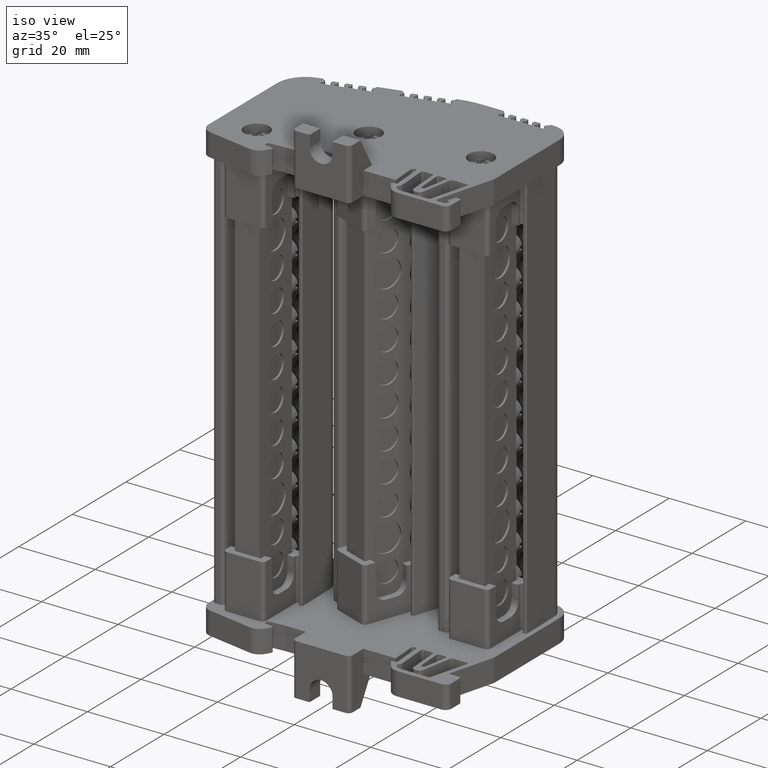
[diagram: clean part render]
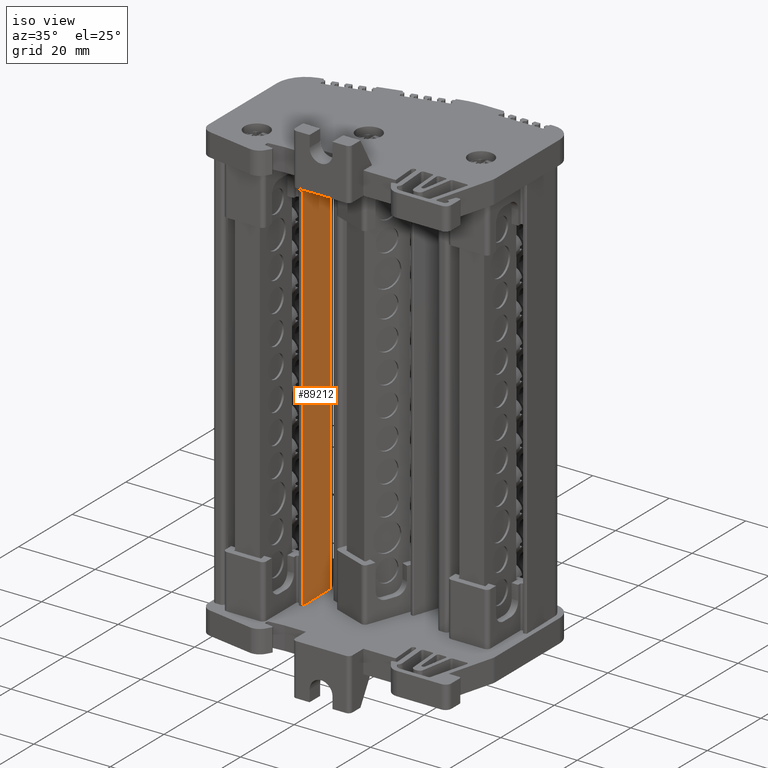
[diagram: same view with one face highlighted and labeled with its STEP entity id]
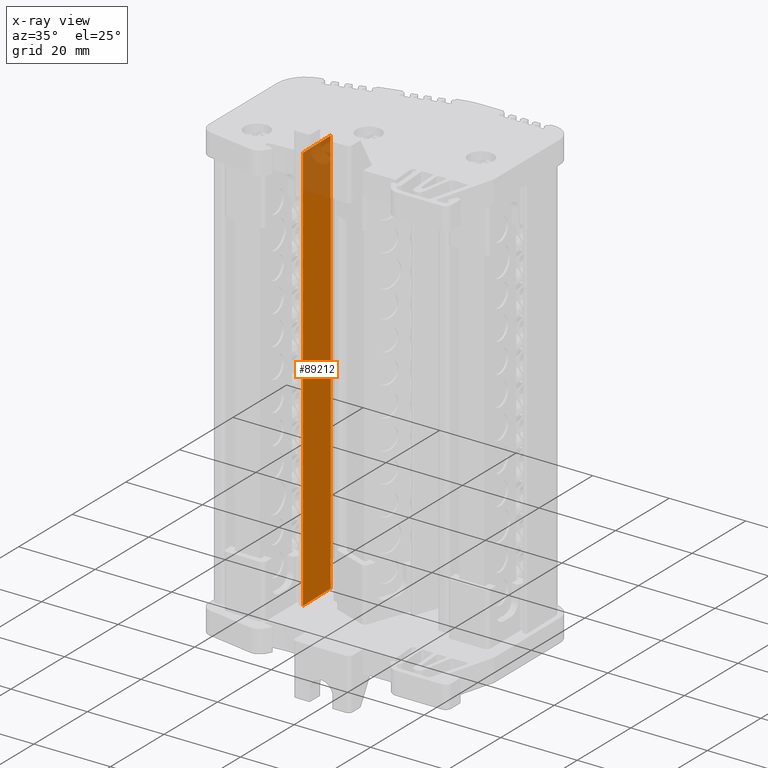
[diagram: x-ray of the same camera — body ghosted, the highlighted face saturated]
A machine part, iso view. The second image highlights one B-rep face of the part: STEP entity #89212.
The next image is the same camera in x-ray: the body ghosted, the highlighted face saturated — about 11% of this face is hidden behind the body in this view.
In plain terms, the highlighted planar face has unit normal (-0.9998, -0.0175, 0).
Its self-contained STEP definition (entity closure, byte-faithful):
#1695 = ORIENTED_EDGE ( 'NONE', *, *, #11537, .T. ) ;
#1708 = ORIENTED_EDGE ( 'NONE', *, *, #4915, .F. ) ;
#1724 = ORIENTED_EDGE ( 'NONE', *, *, #11531, .F. ) ;
#1727 = ORIENTED_EDGE ( 'NONE', *, *, #5017, .F. ) ;
#4915 = EDGE_CURVE ( 'NONE', #45199, #45195, #24812, .T. ) ;
#5017 = EDGE_CURVE ( 'NONE', #45195, #45121, #25134, .T. ) ;
#9393 = EDGE_LOOP ( 'NONE', ( #1727, #1708, #1695, #1724 ) ) ;
#11531 = EDGE_CURVE ( 'NONE', #45121, #45356, #37948, .T. ) ;
#11537 = EDGE_CURVE ( 'NONE', #45199, #45356, #37975, .T. ) ;
#24812 = LINE ( 'NONE', #24825, #84798 ) ;
#24825 = CARTESIAN_POINT ( 'NONE',  ( -313.4644514522837000, 202.5393409416613200, -7.372141304825679400 ) ) ;
#24842 = DIRECTION ( 'NONE',  ( 3.064858591891786700E-013, 5.349730571721345100E-015, 1.000000000000000000 ) ) ;
#25121 = CARTESIAN_POINT ( 'NONE',  ( -313.4644514522507300, 202.5393409416641900, 100.3073473306170800 ) ) ;
#25134 = LINE ( 'NONE', #25121, #84969 ) ;
#25140 = DIRECTION ( 'NONE',  ( -0.01745240643726289600, 0.9998476951563916000, -0.0000000000000000000 ) ) ;
#37930 = CARTESIAN_POINT ( 'NONE',  ( -313.6493484259250400, 213.1320814674688500, 5.822858695060701500 ) ) ;
#37933 = DIRECTION ( 'NONE',  ( -3.062990901166283400E-013, -1.604972357196100700E-014, -1.000000000000000000 ) ) ;
#37948 = LINE ( 'NONE', #37930, #39785 ) ;
#37956 = CARTESIAN_POINT ( 'NONE',  ( -313.4644514522835300, 202.5393409416636200, -6.687066813447830600 ) ) ;
#37967 = DIRECTION ( 'NONE',  ( -0.01745240643726289600, 0.9998476951563916000, -0.0000000000000000000 ) ) ;
#37975 = LINE ( 'NONE', #37956, #39790 ) ;
#39785 = VECTOR ( 'NONE', #37933, 1000.000000000000000 ) ;
#39790 = VECTOR ( 'NONE', #37967, 1000.000000000000000 ) ;
#45121 = VERTEX_POINT ( 'NONE', #66385 ) ;
#45195 = VERTEX_POINT ( 'NONE', #66577 ) ;
#45199 = VERTEX_POINT ( 'NONE', #66527 ) ;
#45356 = VERTEX_POINT ( 'NONE', #66638 ) ;
#66385 = CARTESIAN_POINT ( 'NONE',  ( -313.6493484258962200, 213.1320814674704100, 100.3073473306171900 ) ) ;
#66527 = CARTESIAN_POINT ( 'NONE',  ( -313.4644514522834700, 202.5393409416611200, -6.687066813447916800 ) ) ;
#66577 = CARTESIAN_POINT ( 'NONE',  ( -313.4644514522506700, 202.5393409416622600, 100.3073473306170800 ) ) ;
#66638 = CARTESIAN_POINT ( 'NONE',  ( -313.6493484259289600, 213.1320814674687100, -6.687066813447829700 ) ) ;
#82674 = AXIS2_PLACEMENT_3D ( 'NONE', #88050, #88017, #88014 ) ;
#84798 = VECTOR ( 'NONE', #24842, 1000.000000000000000 ) ;
#84969 = VECTOR ( 'NONE', #25140, 1000.000000000000000 ) ;
#88014 = DIRECTION ( 'NONE',  ( 0.01745240643726289600, -0.9998476951563916000, 0.0000000000000000000 ) ) ;
#88017 = DIRECTION ( 'NONE',  ( -0.9998476951563916000, -0.01745240643726289600, 3.065325455805941800E-013 ) ) ;
#88050 = CARTESIAN_POINT ( 'NONE',  ( -313.4644514522837500, 202.5393409416636200, -7.372141304825679400 ) ) ;
#88059 = FACE_OUTER_BOUND ( 'NONE', #9393, .T. ) ;
#88060 = PLANE ( 'NONE',  #82674 ) ;
#89212 = ADVANCED_FACE ( 'NONE', ( #88059 ), #88060, .F. ) ;